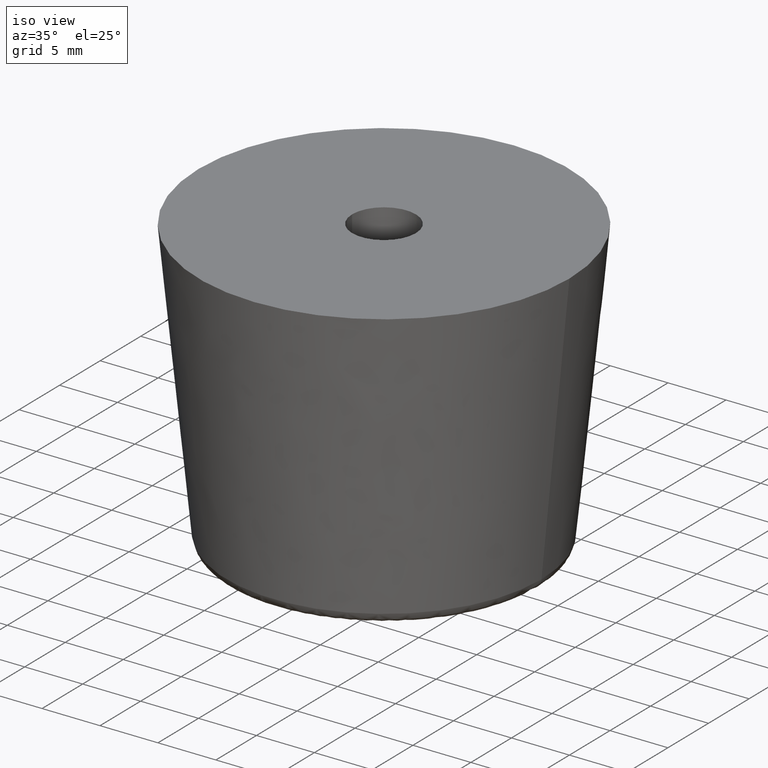
[diagram: clean part render]
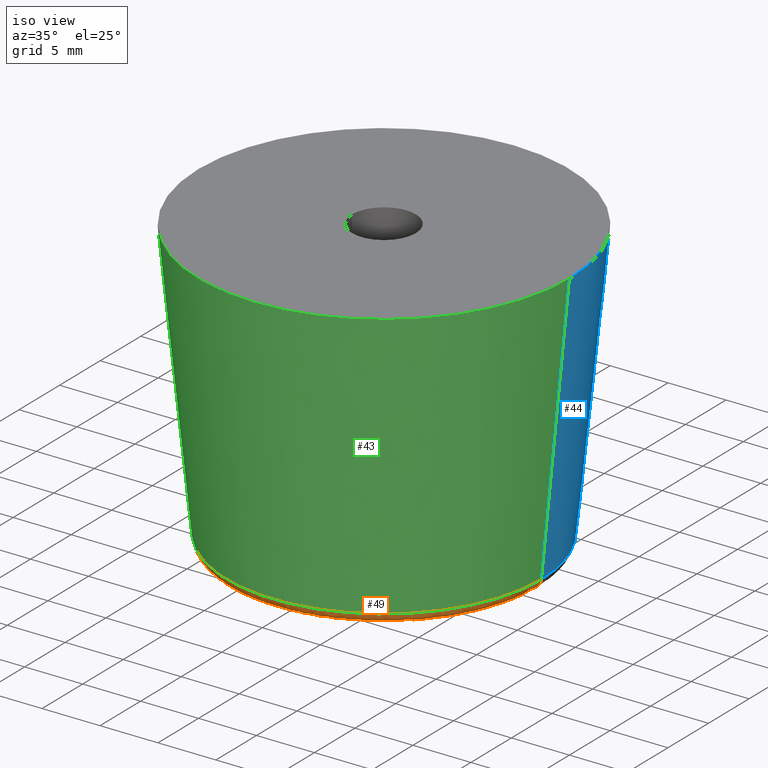
[diagram: same view with three faces highlighted in distinct colors, each labeled with its STEP entity id]
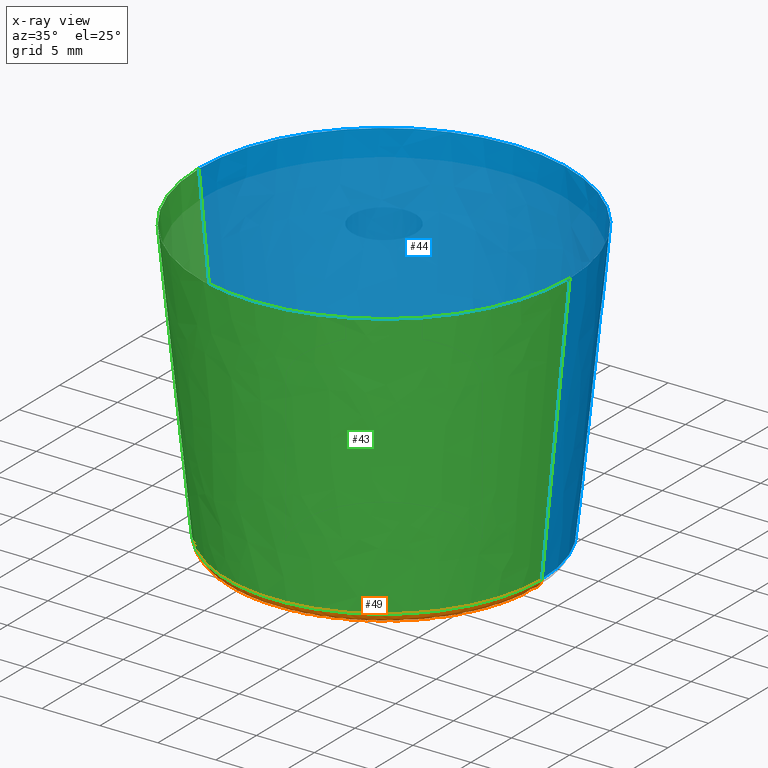
[diagram: x-ray of the same camera — body ghosted, the three highlighted faces saturated]
A machine part, iso view with three faces highlighted in distinct colors.
The next image is the same camera in x-ray (body ghosted, the three faces saturated) — at least one of them is partly hidden behind the body in this view.
Their STEP definitions:

[orange] entity #49 — the highlighted face is a freeform B-spline surface patch.
#49=ADVANCED_FACE('',(#145),#144,.T.);
#144=( BOUNDED_SURFACE() B_SPLINE_SURFACE( 2,2,((#224,#225,#226,#227,#228),(#229,#230,#231,#232,#233),(#234,#235,#236,#237,#238),(#239,#240,#241,#242,#243),(#244,#245,#246,#247,#248)), .UNSPECIFIED.,.F.,.F.,.F.) B_SPLINE_SURFACE_WITH_KNOTS((3,2,3),(3,2,3),(0.00000000000E+00,5.00000000000E-01,1.00000000000E+00),(0.00000000000E+00,5.00000000000E-01,1.00000000000E+00), .UNSPECIFIED. ) GEOMETRIC_REPRESENTATION_ITEM() RATIONAL_B_SPLINE_SURFACE(((1.00000000000E+00,7.41452533552E-01,1.00000000000E+00,7.41452533552E-01,1.00000000000E+00),(7.07106781187E-01,5.24286114402E-01,7.07106781187E-01,5.24286114402E-01,7.07106781187E-01),(1.00000000000E+00,7.41452533552E-01,1.00000000000E+00,7.41452533552E-01,1.00000000000E+00),(7.07106781187E-01,5.24286114402E-01,7.07106781187E-01,5.24286114402E-01,7.07106781187E-01),(1.00000000000E+00,7.41452533552E-01,1.00000000000E+00,7.41452533552E-01,1.00000000000E+00))) REPRESENTATION_ITEM('') SURFACE() );
#145=FACE_OUTER_BOUND('',#249,.T.);
#224=CARTESIAN_POINT('',(1.35900496281E+01,-1.66424611233E-15,-2.40995037190E+01));
#225=CARTESIAN_POINT('',(1.35000000000E+01,-1.65321857766E-15,-2.50000000000E+01));
#226=CARTESIAN_POINT('',(1.25950124379E+01,-1.54239322579E-15,-2.50000000000E+01));
#227=CARTESIAN_POINT('',(1.16900248758E+01,-1.43156787392E-15,-2.50000000000E+01));
#228=CARTESIAN_POINT('',(1.15999752477E+01,-1.42054033925E-15,-2.40995037190E+01));
#229=CARTESIAN_POINT('',(1.35900496281E+01,-1.35900496281E+01,-2.40995037190E+01));
#230=CARTESIAN_POINT('',(1.35000000000E+01,-1.35000000000E+01,-2.50000000000E+01));
#231=CARTESIAN_POINT('',(1.25950124379E+01,-1.25950124379E+01,-2.50000000000E+01));
#232=CARTESIAN_POINT('',(1.16900248758E+01,-1.16900248758E+01,-2.50000000000E+01));
#233=CARTESIAN_POINT('',(1.15999752477E+01,-1.15999752477E+01,-2.40995037190E+01));
#234=CARTESIAN_POINT('',(6.10679833044E-15,-1.35900496281E+01,-2.40995037190E+01));
#235=CARTESIAN_POINT('',(6.11231191567E-15,-1.35000000000E+01,-2.50000000000E+01));
#236=CARTESIAN_POINT('',(6.16772276148E-15,-1.25950124379E+01,-2.50000000000E+01));
#237=CARTESIAN_POINT('',(6.22313360729E-15,-1.16900248758E+01,-2.50000000000E+01));
#238=CARTESIAN_POINT('',(6.22864719252E-15,-1.15999752477E+01,-2.40995037190E+01));
#239=CARTESIAN_POINT('',(-1.35900496281E+01,-1.35900496281E+01,-2.40995037190E+01));
#240=CARTESIAN_POINT('',(-1.35000000000E+01,-1.35000000000E+01,-2.50000000000E+01));
#241=CARTESIAN_POINT('',(-1.25950124379E+01,-1.25950124379E+01,-2.50000000000E+01));
#242=CARTESIAN_POINT('',(-1.16900248758E+01,-1.16900248758E+01,-2.50000000000E+01));
#243=CARTESIAN_POINT('',(-1.15999752477E+01,-1.15999752477E+01,-2.40995037190E+01));
#244=CARTESIAN_POINT('',(-1.35900496281E+01,-5.49653973650E-20,-2.40995037190E+01));
#245=CARTESIAN_POINT('',(-1.35000000000E+01,-5.46011887177E-20,-2.50000000000E+01));
#246=CARTESIAN_POINT('',(-1.25950124379E+01,-5.09409371130E-20,-2.50000000000E+01));
#247=CARTESIAN_POINT('',(-1.16900248758E+01,-4.72806855081E-20,-2.50000000000E+01));
#248=CARTESIAN_POINT('',(-1.15999752477E+01,-4.69164768607E-20,-2.40995037190E+01));
#249=EDGE_LOOP('',(#312,#313,#314,#315));
#312=ORIENTED_EDGE('',*,*,#329,.F.);
#313=ORIENTED_EDGE('',*,*,#340,.F.);
#314=ORIENTED_EDGE('',*,*,#333,.T.);
#315=ORIENTED_EDGE('',*,*,#341,.T.);
#329=EDGE_CURVE('',#399,#398,#406,.T.);
#333=EDGE_CURVE('',#433,#426,#434,.T.);
#340=EDGE_CURVE('',#433,#399,#476,.T.);
#341=EDGE_CURVE('',#426,#398,#482,.T.);
#398=VERTEX_POINT('',#528);
#399=VERTEX_POINT('',#529);
#406=CIRCLE('',#537,1.25950124379E+01);
#426=VERTEX_POINT('',#548);
#433=VERTEX_POINT('',#551);
#434=CIRCLE('',#555,1.35900496281E+01);
#476=(BOUNDED_CURVE() B_SPLINE_CURVE(2,(#570,#571,#572),.UNSPECIFIED.,.F.,.F.) B_SPLINE_CURVE_WITH_KNOTS((3,3),(0.00000000000E+00,5.00000000000E-01),.UNSPECIFIED.) CURVE() GEOMETRIC_REPRESENTATION_ITEM() RATIONAL_B_SPLINE_CURVE((1.00000000000E+00,7.41452533552E-01,1.00000000000E+00)) REPRESENTATION_ITEM('') );
#482=(BOUNDED_CURVE() B_SPLINE_CURVE(3,(#573,#574,#575,#576),.UNSPECIFIED.,.F.,.F.) B_SPLINE_CURVE_WITH_KNOTS((4,4),(0.00000000000E+00,5.00000000837E-01),.UNSPECIFIED.) CURVE() GEOMETRIC_REPRESENTATION_ITEM() RATIONAL_B_SPLINE_CURVE((1.00000000000E+00,1.00000000000E+00,1.00000000000E+00,1.00000000000E+00)) REPRESENTATION_ITEM('') );
#528=CARTESIAN_POINT('',(-1.25950124379E+01,0.00000000000E+00,-2.50000000000E+01));
#529=CARTESIAN_POINT('',(1.25950124379E+01,-5.92118946467E-16,-2.50000000000E+01));
#534=CARTESIAN_POINT('',(7.10542735760E-15,0.00000000000E+00,-2.50000000000E+01));
#535=DIRECTION('',(-0.00000000000E+00,0.00000000000E+00,-1.00000000000E+00));
#536=DIRECTION('',(-1.00000000000E+00,-1.22460635382E-16,0.00000000000E+00));
#537=AXIS2_PLACEMENT_3D('',#534,#535,#536);
#548=CARTESIAN_POINT('',(-1.35900496281E+01,0.00000000000E+00,-2.40995037190E+01));
#551=CARTESIAN_POINT('',(1.35900496281E+01,5.92118946467E-16,-2.40995037190E+01));
#552=CARTESIAN_POINT('',(7.10542735760E-15,0.00000000000E+00,-2.40995037190E+01));
#553=DIRECTION('',(-0.00000000000E+00,0.00000000000E+00,-1.00000000000E+00));
#554=DIRECTION('',(-1.00000000000E+00,-1.22460635382E-16,0.00000000000E+00));
#555=AXIS2_PLACEMENT_3D('',#552,#553,#554);
#570=CARTESIAN_POINT('',(1.35900496281E+01,-1.66424611233E-15,-2.40995037190E+01));
#571=CARTESIAN_POINT('',(1.35000000000E+01,-1.65321857766E-15,-2.50000000000E+01));
#572=CARTESIAN_POINT('',(1.25950124379E+01,-1.54239322579E-15,-2.50000000000E+01));
#573=CARTESIAN_POINT('',(-1.35900496281E+01,1.18423789293E-15,-2.40995037190E+01));
#574=CARTESIAN_POINT('',(-1.34896861985E+01,1.44796748208E-15,-2.46552700458E+01));
#575=CARTESIAN_POINT('',(-1.31580071344E+01,1.64534046442E-15,-2.49554354728E+01));
#576=CARTESIAN_POINT('',(-1.25950124356E+01,1.77635683995E-15,-2.50000000000E+01));

[blue] entity #44 — the highlighted face is a freeform B-spline surface patch.
#44=ADVANCED_FACE('',(#95),#94,.T.);
#94=( BOUNDED_SURFACE() B_SPLINE_SURFACE( 2,1,((#193,#194),(#195,#196),(#197,#198),(#199,#200),(#201,#202)), .UNSPECIFIED.,.F.,.F.,.F.) B_SPLINE_SURFACE_WITH_KNOTS((3,2,3),(2,2),(0.00000000000E+00,5.00000000000E-01,1.00000000000E+00),(0.00000000000E+00,1.00000000000E+00), .UNSPECIFIED. ) GEOMETRIC_REPRESENTATION_ITEM() RATIONAL_B_SPLINE_SURFACE(((1.00000000000E+00,1.00000000000E+00),(7.07106781187E-01,7.07106781187E-01),(1.00000000000E+00,1.00000000000E+00),(7.07106781187E-01,7.07106781187E-01),(1.00000000000E+00,1.00000000000E+00))) REPRESENTATION_ITEM('') SURFACE() );
#95=FACE_OUTER_BOUND('',#203,.T.);
#193=CARTESIAN_POINT('',(1.35900496281E+01,1.66430107773E-15,-2.40995037190E+01));
#194=CARTESIAN_POINT('',(1.60000000000E+01,1.95943487864E-15,0.00000000000E+00));
#195=CARTESIAN_POINT('',(1.35900496281E+01,1.35900496281E+01,-2.40995037190E+01));
#196=CARTESIAN_POINT('',(1.60000000000E+01,1.60000000000E+01,0.00000000000E+00));
#197=CARTESIAN_POINT('',(6.27327681874E-15,1.35900496281E+01,-2.40995037190E+01));
#198=CARTESIAN_POINT('',(6.12570991828E-15,1.60000000000E+01,0.00000000000E+00));
#199=CARTESIAN_POINT('',(-1.35900496281E+01,1.35900496281E+01,-2.40995037190E+01));
#200=CARTESIAN_POINT('',(-1.60000000000E+01,1.60000000000E+01,0.00000000000E+00));
#201=CARTESIAN_POINT('',(-1.35900496281E+01,0.00000000000E+00,-2.40995037190E+01));
#202=CARTESIAN_POINT('',(-1.60000000000E+01,0.00000000000E+00,0.00000000000E+00));
#203=EDGE_LOOP('',(#292,#293,#294,#295));
#292=ORIENTED_EDGE('',*,*,#335,.F.);
#293=ORIENTED_EDGE('',*,*,#332,.T.);
#294=ORIENTED_EDGE('',*,*,#321,.T.);
#295=ORIENTED_EDGE('',*,*,#334,.F.);
#321=EDGE_CURVE('',#343,#342,#350,.T.);
#332=EDGE_CURVE('',#426,#343,#427,.T.);
#334=EDGE_CURVE('',#433,#342,#440,.T.);
#335=EDGE_CURVE('',#426,#433,#446,.T.);
#342=VERTEX_POINT('',#488);
#343=VERTEX_POINT('',#489);
#350=CIRCLE('',#497,1.60000000000E+01);
#426=VERTEX_POINT('',#548);
#427=(BOUNDED_CURVE() B_SPLINE_CURVE(1,(#549,#550),.UNSPECIFIED.,.F.,.F.) B_SPLINE_CURVE_WITH_KNOTS((2,2),(0.00000000000E+00,1.00000000000E+00),.UNSPECIFIED.) CURVE() GEOMETRIC_REPRESENTATION_ITEM() RATIONAL_B_SPLINE_CURVE((1.00000000000E+00,1.00000000000E+00)) REPRESENTATION_ITEM('') );
#433=VERTEX_POINT('',#551);
#440=(BOUNDED_CURVE() B_SPLINE_CURVE(1,(#556,#557),.UNSPECIFIED.,.F.,.F.) B_SPLINE_CURVE_WITH_KNOTS((2,2),(0.00000000000E+00,1.00000000000E+00),.UNSPECIFIED.) CURVE() GEOMETRIC_REPRESENTATION_ITEM() RATIONAL_B_SPLINE_CURVE((7.50000000000E-01,7.50000000000E-01)) REPRESENTATION_ITEM('') );
#446=CIRCLE('',#561,1.35900496281E+01);
#488=CARTESIAN_POINT('',(1.60000000000E+01,1.77635683940E-15,0.00000000000E+00));
#489=CARTESIAN_POINT('',(-1.60000000000E+01,0.00000000000E+00,0.00000000000E+00));
#494=CARTESIAN_POINT('',(7.10542735760E-15,0.00000000000E+00,0.00000000000E+00));
#495=DIRECTION('',(-0.00000000000E+00,0.00000000000E+00,-1.00000000000E+00));
#496=DIRECTION('',(-1.00000000000E+00,-1.22460635382E-16,0.00000000000E+00));
#497=AXIS2_PLACEMENT_3D('',#494,#495,#496);
#548=CARTESIAN_POINT('',(-1.35900496281E+01,0.00000000000E+00,-2.40995037190E+01));
#549=CARTESIAN_POINT('',(-1.35900496281E+01,-3.32849222467E-15,-2.40995037190E+01));
#550=CARTESIAN_POINT('',(-1.60000000000E+01,-3.91874033223E-15,0.00000000000E+00));
#551=CARTESIAN_POINT('',(1.35900496281E+01,5.92118946467E-16,-2.40995037190E+01));
#556=CARTESIAN_POINT('',(1.35900496281E+01,3.55271367880E-15,-2.40995037190E+01));
#557=CARTESIAN_POINT('',(1.60000000000E+01,4.14483262527E-15,0.00000000000E+00));
#558=CARTESIAN_POINT('',(7.10542735760E-15,0.00000000000E+00,-2.40995037190E+01));
#559=DIRECTION('',(-0.00000000000E+00,0.00000000000E+00,-1.00000000000E+00));
#560=DIRECTION('',(-1.00000000000E+00,-1.22460635382E-16,0.00000000000E+00));
#561=AXIS2_PLACEMENT_3D('',#558,#559,#560);

[green] entity #43 — the highlighted face is a freeform B-spline surface patch.
#43=ADVANCED_FACE('',(#85),#84,.T.);
#84=( BOUNDED_SURFACE() B_SPLINE_SURFACE( 2,1,((#182,#183),(#184,#185),(#186,#187),(#188,#189),(#190,#191)), .UNSPECIFIED.,.F.,.F.,.F.) B_SPLINE_SURFACE_WITH_KNOTS((3,2,3),(2,2),(0.00000000000E+00,5.00000000000E-01,1.00000000000E+00),(0.00000000000E+00,1.00000000000E+00), .UNSPECIFIED. ) GEOMETRIC_REPRESENTATION_ITEM() RATIONAL_B_SPLINE_SURFACE(((1.00000000000E+00,1.00000000000E+00),(7.07106781187E-01,7.07106781187E-01),(1.00000000000E+00,1.00000000000E+00),(7.07106781187E-01,7.07106781187E-01),(1.00000000000E+00,1.00000000000E+00))) REPRESENTATION_ITEM('') SURFACE() );
#85=FACE_OUTER_BOUND('',#192,.T.);
#182=CARTESIAN_POINT('',(-1.35900496281E+01,-3.32860215546E-15,-2.40995037190E+01));
#183=CARTESIAN_POINT('',(-1.60000000000E+01,-3.91886975727E-15,0.00000000000E+00));
#184=CARTESIAN_POINT('',(-1.35900496281E+01,-1.35900496281E+01,-2.40995037190E+01));
#185=CARTESIAN_POINT('',(-1.60000000000E+01,-1.60000000000E+01,0.00000000000E+00));
#186=CARTESIAN_POINT('',(9.60187897420E-15,-1.35900496281E+01,-2.40995037190E+01));
#187=CARTESIAN_POINT('',(1.00445796756E-14,-1.60000000000E+01,0.00000000000E+00));
#188=CARTESIAN_POINT('',(1.35900496281E+01,-1.35900496281E+01,-2.40995037190E+01));
#189=CARTESIAN_POINT('',(1.60000000000E+01,-1.60000000000E+01,0.00000000000E+00));
#190=CARTESIAN_POINT('',(1.35900496281E+01,1.66430107773E-15,-2.40995037190E+01));
#191=CARTESIAN_POINT('',(1.60000000000E+01,1.95943487864E-15,0.00000000000E+00));
#192=EDGE_LOOP('',(#288,#289,#290,#291));
#288=ORIENTED_EDGE('',*,*,#320,.T.);
#289=ORIENTED_EDGE('',*,*,#332,.F.);
#290=ORIENTED_EDGE('',*,*,#333,.F.);
#291=ORIENTED_EDGE('',*,*,#334,.T.);
#320=EDGE_CURVE('',#342,#343,#344,.T.);
#332=EDGE_CURVE('',#426,#343,#427,.T.);
#333=EDGE_CURVE('',#433,#426,#434,.T.);
#334=EDGE_CURVE('',#433,#342,#440,.T.);
#342=VERTEX_POINT('',#488);
#343=VERTEX_POINT('',#489);
#344=CIRCLE('',#493,1.60000000000E+01);
#426=VERTEX_POINT('',#548);
#427=(BOUNDED_CURVE() B_SPLINE_CURVE(1,(#549,#550),.UNSPECIFIED.,.F.,.F.) B_SPLINE_CURVE_WITH_KNOTS((2,2),(0.00000000000E+00,1.00000000000E+00),.UNSPECIFIED.) CURVE() GEOMETRIC_REPRESENTATION_ITEM() RATIONAL_B_SPLINE_CURVE((1.00000000000E+00,1.00000000000E+00)) REPRESENTATION_ITEM('') );
#433=VERTEX_POINT('',#551);
#434=CIRCLE('',#555,1.35900496281E+01);
#440=(BOUNDED_CURVE() B_SPLINE_CURVE(1,(#556,#557),.UNSPECIFIED.,.F.,.F.) B_SPLINE_CURVE_WITH_KNOTS((2,2),(0.00000000000E+00,1.00000000000E+00),.UNSPECIFIED.) CURVE() GEOMETRIC_REPRESENTATION_ITEM() RATIONAL_B_SPLINE_CURVE((7.50000000000E-01,7.50000000000E-01)) REPRESENTATION_ITEM('') );
#488=CARTESIAN_POINT('',(1.60000000000E+01,1.77635683940E-15,0.00000000000E+00));
#489=CARTESIAN_POINT('',(-1.60000000000E+01,0.00000000000E+00,0.00000000000E+00));
#490=CARTESIAN_POINT('',(7.10542735760E-15,0.00000000000E+00,0.00000000000E+00));
#491=DIRECTION('',(-0.00000000000E+00,0.00000000000E+00,-1.00000000000E+00));
#492=DIRECTION('',(-1.00000000000E+00,-1.22460635382E-16,0.00000000000E+00));
#493=AXIS2_PLACEMENT_3D('',#490,#491,#492);
#548=CARTESIAN_POINT('',(-1.35900496281E+01,0.00000000000E+00,-2.40995037190E+01));
#549=CARTESIAN_POINT('',(-1.35900496281E+01,-3.32849222467E-15,-2.40995037190E+01));
#550=CARTESIAN_POINT('',(-1.60000000000E+01,-3.91874033223E-15,0.00000000000E+00));
#551=CARTESIAN_POINT('',(1.35900496281E+01,5.92118946467E-16,-2.40995037190E+01));
#552=CARTESIAN_POINT('',(7.10542735760E-15,0.00000000000E+00,-2.40995037190E+01));
#553=DIRECTION('',(-0.00000000000E+00,0.00000000000E+00,-1.00000000000E+00));
#554=DIRECTION('',(-1.00000000000E+00,-1.22460635382E-16,0.00000000000E+00));
#555=AXIS2_PLACEMENT_3D('',#552,#553,#554);
#556=CARTESIAN_POINT('',(1.35900496281E+01,3.55271367880E-15,-2.40995037190E+01));
#557=CARTESIAN_POINT('',(1.60000000000E+01,4.14483262527E-15,0.00000000000E+00));